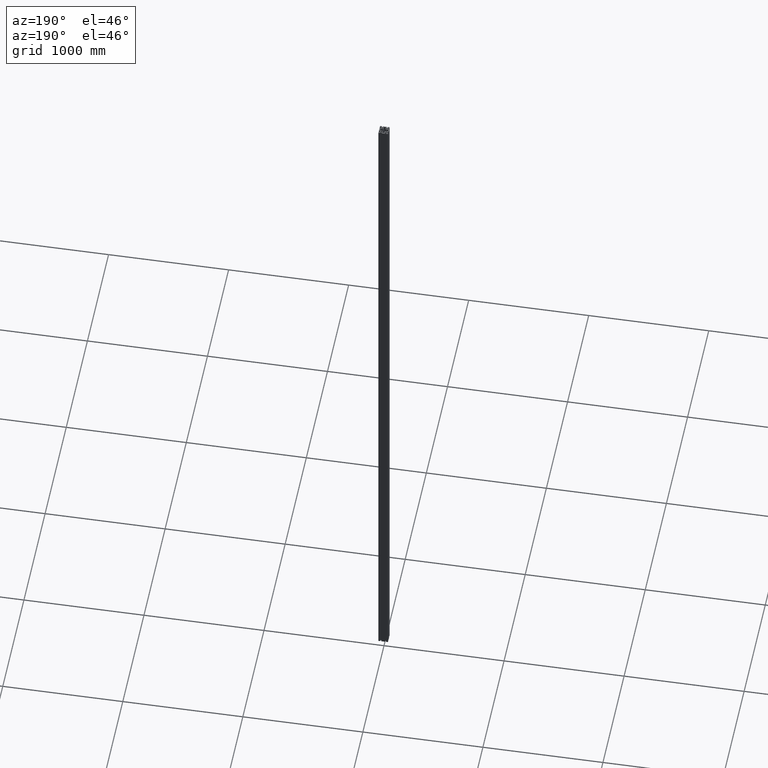
[diagram: clean part render]
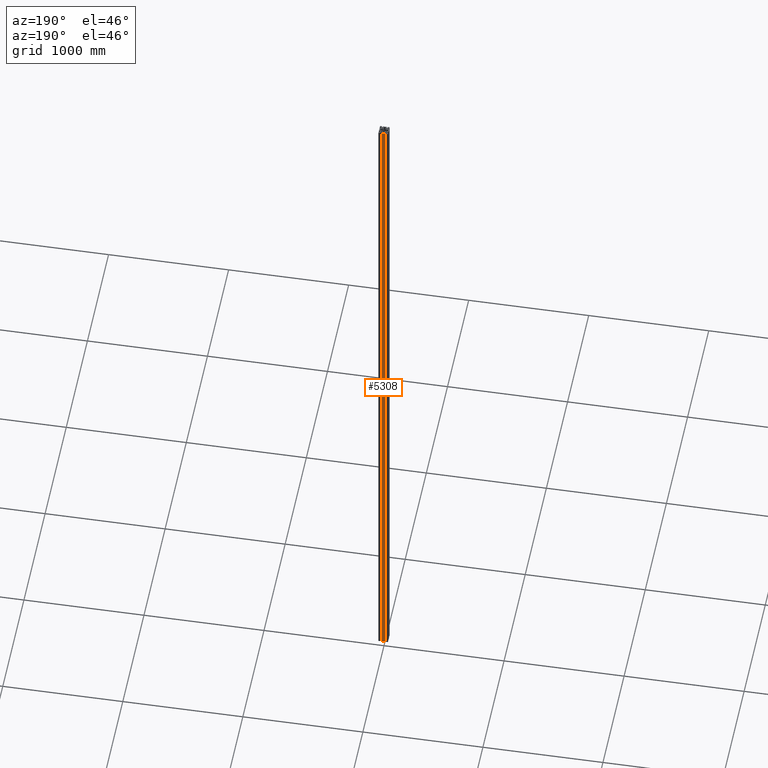
[diagram: same view with one face highlighted and labeled with its STEP entity id]
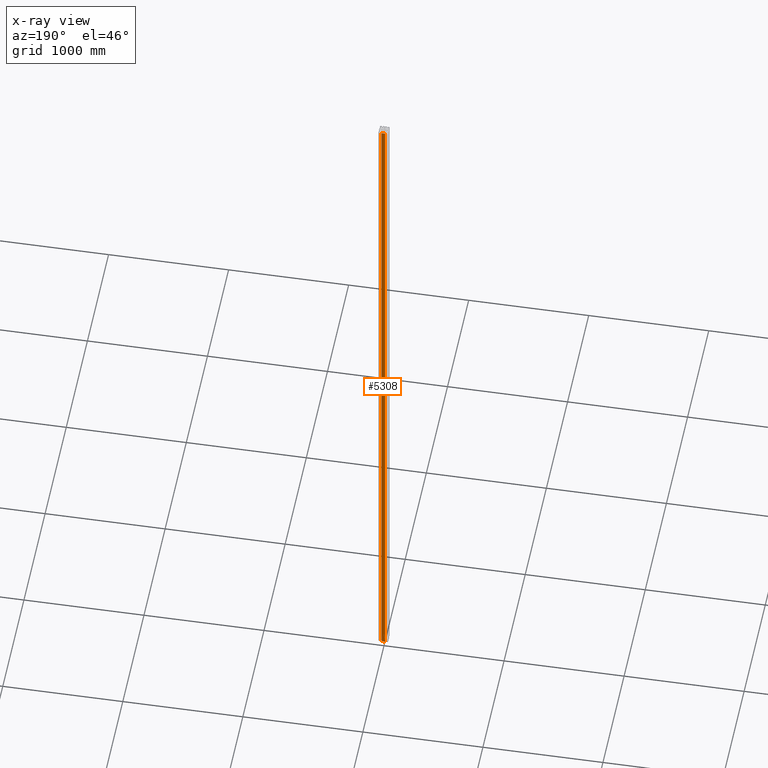
[diagram: x-ray of the same camera — body ghosted, the highlighted face saturated]
A machine part, auxiliary view. The second image highlights one B-rep face of the part: STEP entity #5308.
The next image is the same camera in x-ray: the body ghosted, the highlighted face saturated — about 0% of this face is hidden behind the body in this view.
In plain terms, the highlighted planar face has unit normal (0, 1, 0).
Its self-contained STEP definition (entity closure, byte-faithful):
#44 = CARTESIAN_POINT ( 'NONE',  ( 16.00000012200000300, 39.99999999300000300, -3000.000000000000000 ) ) ;
#45 = DIRECTION ( 'NONE',  ( -0.0000000000000000000, -0.0000000000000000000, -1.000000000000000000 ) ) ;
#50 = CARTESIAN_POINT ( 'NONE',  ( -16.00000000000000000, 39.99999999300000300, -3000.000000000000000 ) ) ;
#51 = DIRECTION ( 'NONE',  ( 0.0000000000000000000, 0.0000000000000000000, 1.000000000000000000 ) ) ;
#502 = EDGE_LOOP ( 'NONE', ( #5520, #5519, #5518, #5523 ) ) ;
#1639 = PLANE ( 'NONE',  #4301 ) ;
#1640 = CARTESIAN_POINT ( 'NONE',  ( -16.00000000000000000, 39.99999999300000300, -6000.000000000000000 ) ) ;
#1641 = DIRECTION ( 'NONE',  ( 0.0000000000000000000, 1.000000000000000000, 0.0000000000000000000 ) ) ;
#1642 = DIRECTION ( 'NONE',  ( 0.0000000000000000000, 0.0000000000000000000, 1.000000000000000000 ) ) ;
#1868 = EDGE_CURVE ( 'NONE', #3249, #3248, #3845, .T. ) ;
#1871 = EDGE_CURVE ( 'NONE', #3247, #3246, #3851, .T. ) ;
#2331 = EDGE_CURVE ( 'NONE', #3247, #3248, #3891, .T. ) ;
#2332 = EDGE_CURVE ( 'NONE', #3246, #3249, #3893, .T. ) ;
#2766 = FACE_OUTER_BOUND ( 'NONE', #502, .T. ) ;
#3246 = VERTEX_POINT ( 'NONE', #3520 ) ;
#3247 = VERTEX_POINT ( 'NONE', #3521 ) ;
#3248 = VERTEX_POINT ( 'NONE', #3522 ) ;
#3249 = VERTEX_POINT ( 'NONE', #3523 ) ;
#3520 = CARTESIAN_POINT ( 'NONE',  ( -16.00000000000000000, 39.99999999300000300, 0.0000000000000000000 ) ) ;
#3521 = CARTESIAN_POINT ( 'NONE',  ( -16.00000000000000000, 39.99999999300000300, -6000.000000000000000 ) ) ;
#3522 = CARTESIAN_POINT ( 'NONE',  ( 16.00000012200000300, 39.99999999300000300, -6000.000000000000000 ) ) ;
#3523 = CARTESIAN_POINT ( 'NONE',  ( 16.00000012200000700, 39.99999999300000300, 0.0000000000000000000 ) ) ;
#3718 = CARTESIAN_POINT ( 'NONE',  ( 40.00000000000000000, 39.99999999300000300, -6000.000000000000000 ) ) ;
#3719 = DIRECTION ( 'NONE',  ( 1.000000000000000000, -0.0000000000000000000, -0.0000000000000000000 ) ) ;
#3720 = CARTESIAN_POINT ( 'NONE',  ( -16.00000000000000000, 39.99999999300000300, 0.0000000000000000000 ) ) ;
#3721 = DIRECTION ( 'NONE',  ( 1.000000000000000000, 0.0000000000000000000, 0.0000000000000000000 ) ) ;
#3845 = LINE ( 'NONE', #44, #3846 ) ;
#3846 = VECTOR ( 'NONE', #45, 1000.000000000000000 ) ;
#3851 = LINE ( 'NONE', #50, #3852 ) ;
#3852 = VECTOR ( 'NONE', #51, 1000.000000000000000 ) ;
#3891 = LINE ( 'NONE', #3718, #3892 ) ;
#3892 = VECTOR ( 'NONE', #3719, 1000.000000000000000 ) ;
#3893 = LINE ( 'NONE', #3720, #3894 ) ;
#3894 = VECTOR ( 'NONE', #3721, 1000.000000000000000 ) ;
#4301 = AXIS2_PLACEMENT_3D ( 'NONE', #1640, #1641, #1642 ) ;
#5308 = ADVANCED_FACE ( 'NONE', ( #2766 ), #1639, .T. ) ;
#5518 = ORIENTED_EDGE ( 'NONE', *, *, #2332, .T. ) ;
#5519 = ORIENTED_EDGE ( 'NONE', *, *, #1871, .T. ) ;
#5520 = ORIENTED_EDGE ( 'NONE', *, *, #2331, .F. ) ;
#5523 = ORIENTED_EDGE ( 'NONE', *, *, #1868, .T. ) ;